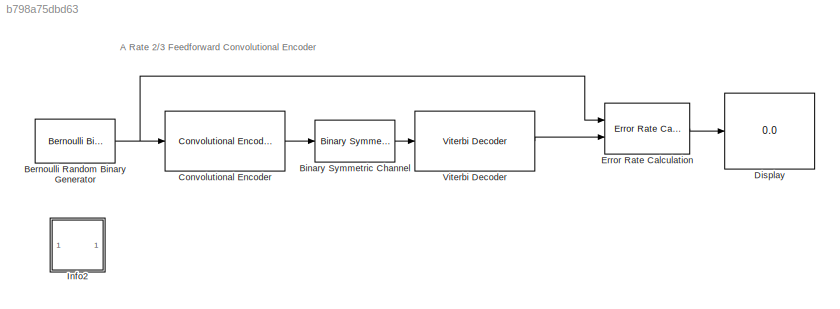
MODEL slx_b798a75dbd63
KIND model
BLOCK [Reference] Bernoulli Random Binary Generator  REF=commrandsrc2/Bernoulli Binary
Generator
  P = .5
  Ports = [0, 1]
  SourceBlock = commrandsrc2/Bernoulli Binary\nGenerator
  SourceType = Bernoulli Binary Generator
  Ts = .5
  frameBased = on
  orient = off
  outDataType = double
  sampPerFrame = 2
  seed = 129499
BLOCK [Reference] Binary Symmetric Channel  REF=commchan3/Binary Symmetric
Channel
  E = off
  P = 0.02
  Ports = [1, 1]
  SourceBlock = commchan3/Binary Symmetric\nChannel
  SourceType = Binary Symmetric Channel
  outDtype = double
  s = 149
BLOCK [Reference] Convolutional Encoder  REF=commcnvcod2/Convolutional
Encoder
  DelayedResetAction = off
  Ports = [1, 1]
  SourceBlock = commcnvcod2/Convolutional\nEncoder
  SourceType = Convolutional Encoder
  hasFinStPort = off
  hasIniStPort = off
  opMode = Continuous
  punctureVector = [1; 1; 0; 1; 0; 1]
  reset = Unused parameter value
  trellis = poly2trellis([5 4], [23 35 0; 0 5 13] )
  usePuncVector = off
BLOCK [Display] Display
  Decimation = 1
  Ports = [1]
BLOCK [Reference] Error Rate Calculation  REF=commsink2/Error Rate
Calculation
  N = 68
  PMode = Port
  Ports = [2, 1]
  RsMode2 = off
  SourceBlock = commsink2/Error Rate\nCalculation
  SourceType = Error Rate Calculation
  WsName = ErrorVec
  cp_mode = Entire frame
  maxBits = 1e6
  numErr = 100
  st_delay = 0
  stop = on
  subframe = []
BLOCK [SubSystem] Info2
  AncestorBlock = commblksprivate/Info
  OpenFcn = helpview([docroot '/toolbox/comm/comm.map'], 'doc_convcoding')
  Ports = []
  RequestExecContextInheritance = off
BLOCK [Reference] Viterbi Decoder  REF=commcnvcod2/Viterbi Decoder
  Ports = [1, 1]
  SourceBlock = commcnvcod2/Viterbi Decoder
  SourceType = Viterbi Decoder
  dectype = Hard decision
  delayedResetAction = off
  erasures = off
  isPunctured = off
  nsdecb = 4
  opmode = Continuous
  outDataType = Inherit via internal rule
  punctureVector = [1; 1; 0; 1; 0; 1]
  reset = off
  runSigValErrCheck = off
  smWordLength = 16
  tbdepth = 34
  trellis = poly2trellis([5 4], [23 35 0; 0 5 13] )
ANNOTATION (root): A Rate 2/3 Feedforward Convolutional Encoder
NET Bernoulli Random Binary Generator:1 -> Convolutional Encoder:1, Error Rate Calculation:1
LINE Binary Symmetric Channel:1 -> Viterbi Decoder:1
LINE Convolutional Encoder:1 -> Binary Symmetric Channel:1
LINE Error Rate Calculation:1 -> Display:1
LINE Viterbi Decoder:1 -> Error Rate Calculation:2
note: NET lines group one-source signal fan-out (src -> all destinations, sorted); 1:1 wires keep LINE
